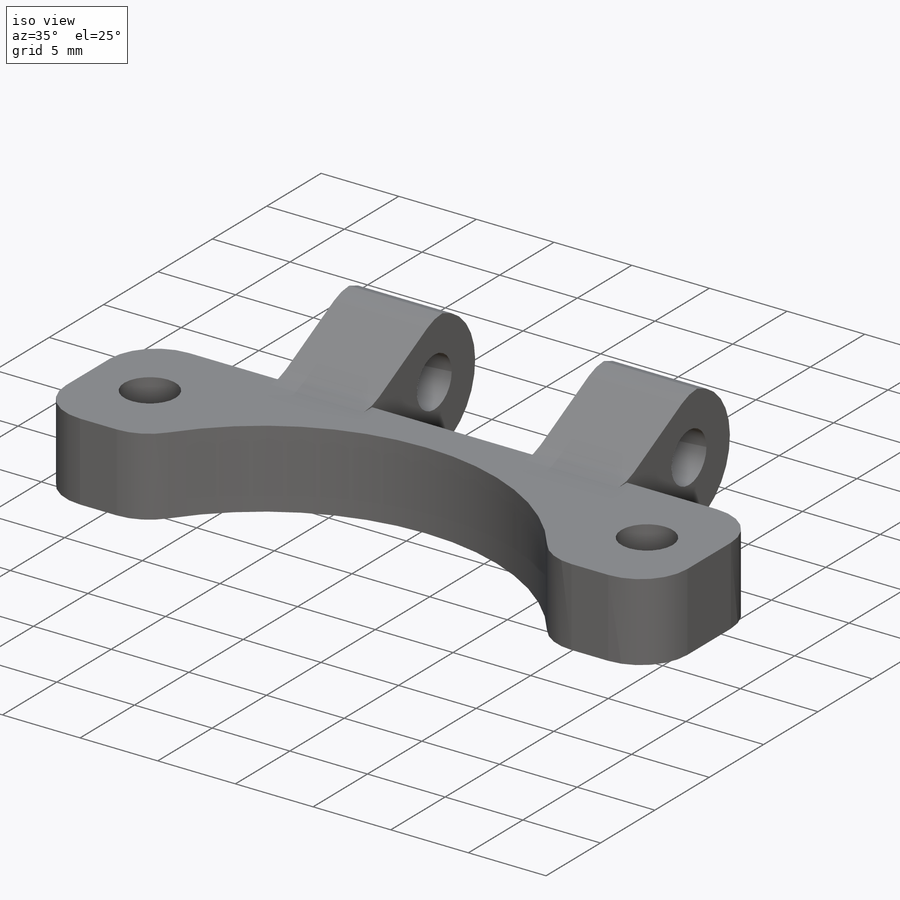
[diagram: iso view]
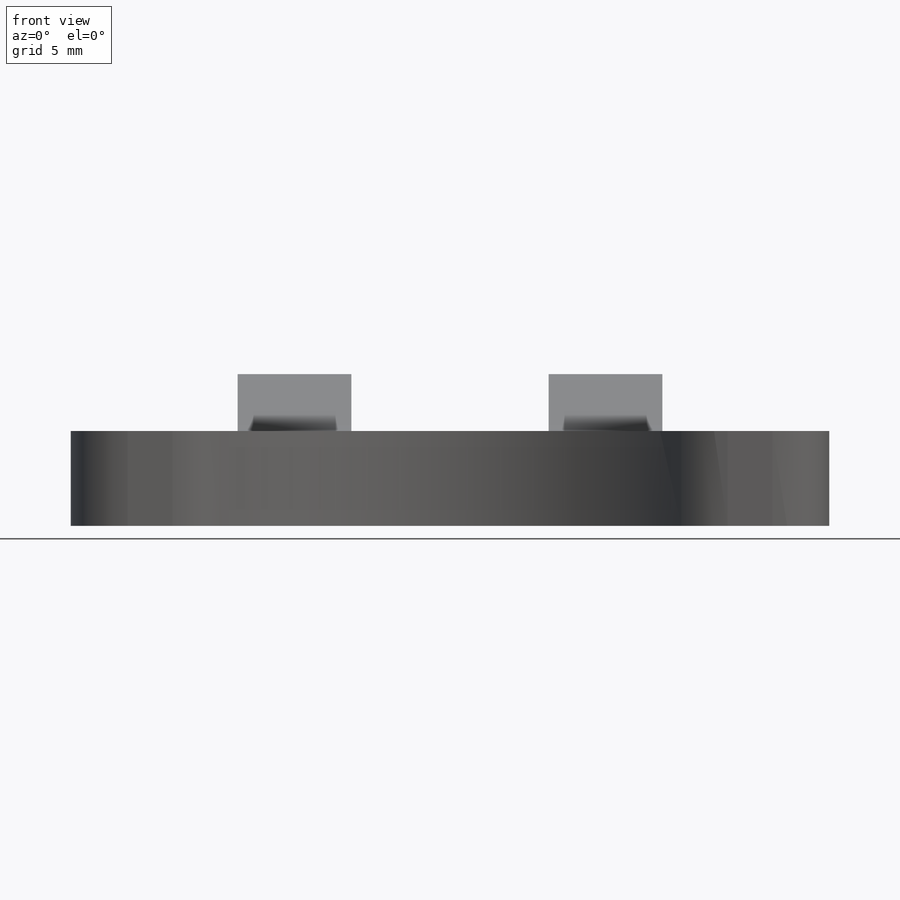
[diagram: front view]
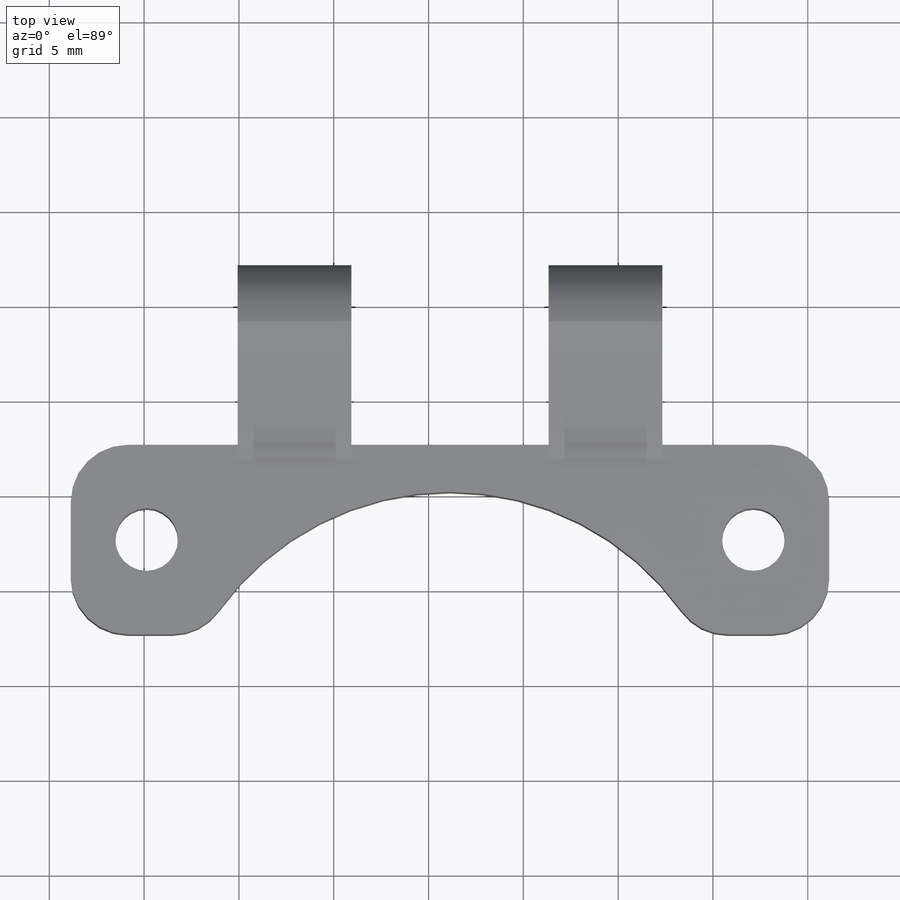
[diagram: top view]
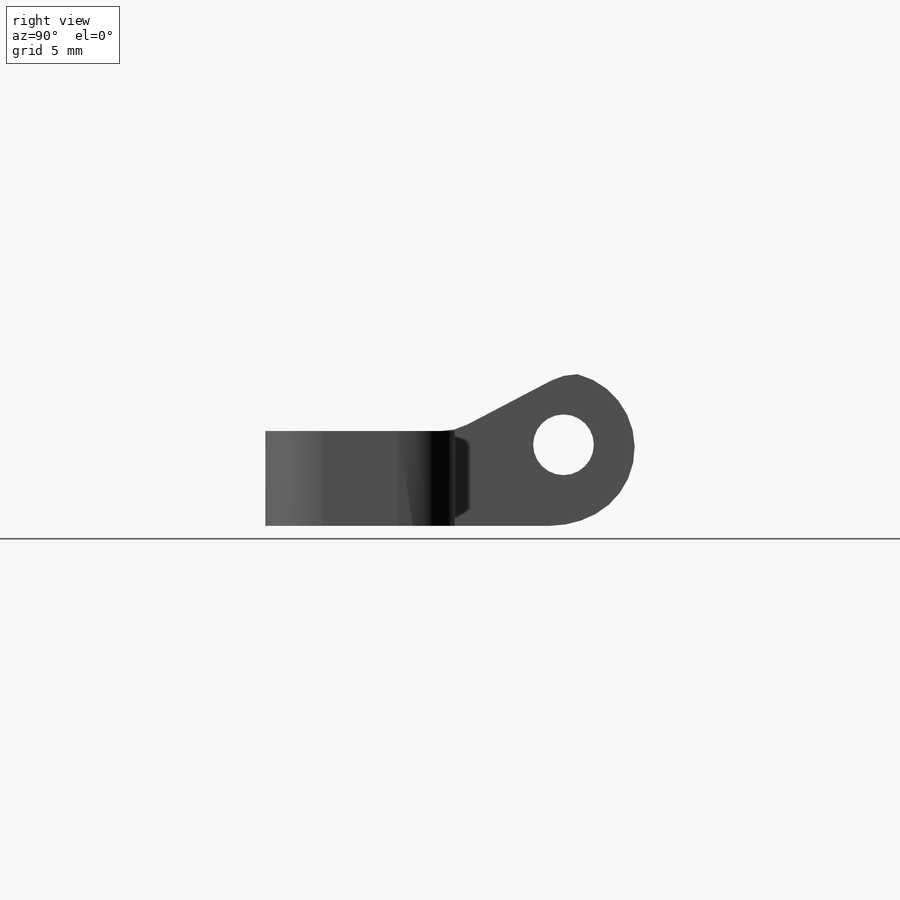
[diagram: right view]
SOLIDWORKS PART (.sldprt)
format: sldprt  version: not decoded by parser v0  size: 280,576 bytes
history: native  units: mm
features: sketch x6, fillet x6, cut_extrude x4, plane x3, extrude x2, material x1 (+8 scaffold rows collapsed)
feature tree (30):
  scaffold x8  (default folders/planes/origin — collapsed)
  material  "Material <not specified>"
  plane  "Plan de face"
  plane  "Plan de dessus"
  plane  "Plan de droite"
  sketch  "Esquisse1"  dims[D1=40.0mm D2=10.0mm]
  extrude  "Boss.-Extru.1"  Depth=5mm
  sketch  "Esquisse2"  dims[D1=3.3mm D2=3.3mm D3=32.0mm D4=5.0mm D5=4.0mm D6=4.0mm]
  cut_extrude  "Enlèv. mat.-Extru.1"  [1 undecoded]
  sketch  "Esquisse3"  dims[D1=10.4mm D2=6.0mm D3=6.0mm D4=10.0mm D5=10.0mm D6=8.8mm D7=10.0mm]
  extrude  "Boss.-Extru.2"  Depth=5mm
  sketch  "Esquisse4"  dims[D1=3.2mm D2=4.275mm D3=4.275mm]
  cut_extrude  "Enlèv. mat.-Extru.2"  [1 undecoded]
  fillet  "Congé1"  Radius=5mm
  sketch  "Esquisse5"  dims[D1=4.275mm D2=2.0mm]
  cut_extrude  "Enlèv. mat.-Extru.3"  [1 undecoded]
  fillet  "Congé3"  Radius=3mm
  fillet  "Congé4"  Radius=3mm
  fillet  "Congé5"  Radius=3mm
  sketch  "Esquisse6"  dims[D3=15.0mm D1=4.0mm D2=4.0mm]
  cut_extrude  "Enlèv. mat.-Extru.4"  [1 undecoded]
  fillet  "Congé6"  Radius=3mm
  fillet  "Congé7"  Radius=4mm
decode coverage: 14 of 18 modeling features carry decoded parameters
note: 4 parameter values undecoded
summary: no parameter record found for 4 features
note: suppression state not decoded; provenance and decode notes live in map.json
